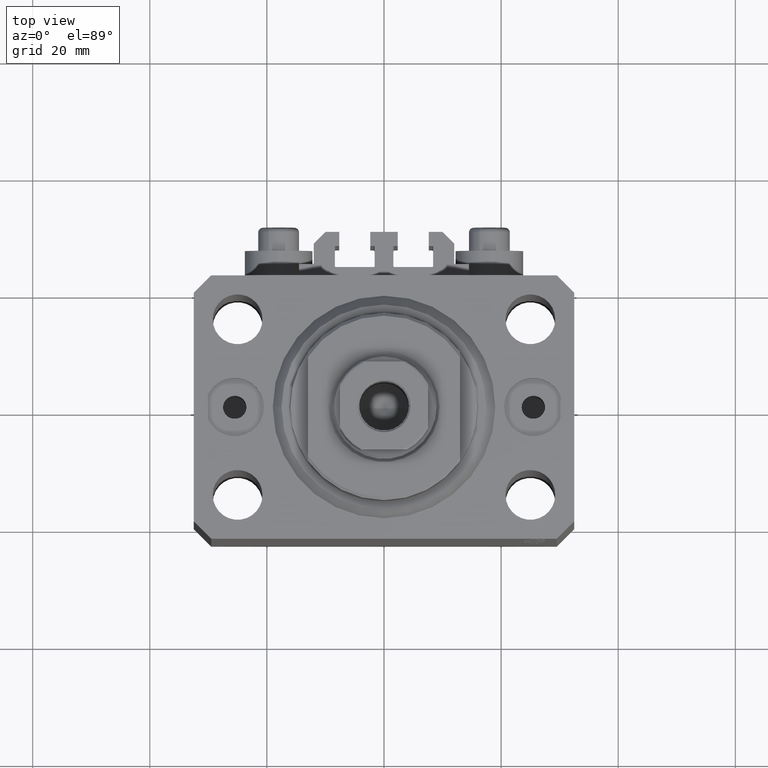
[diagram: clean part render]
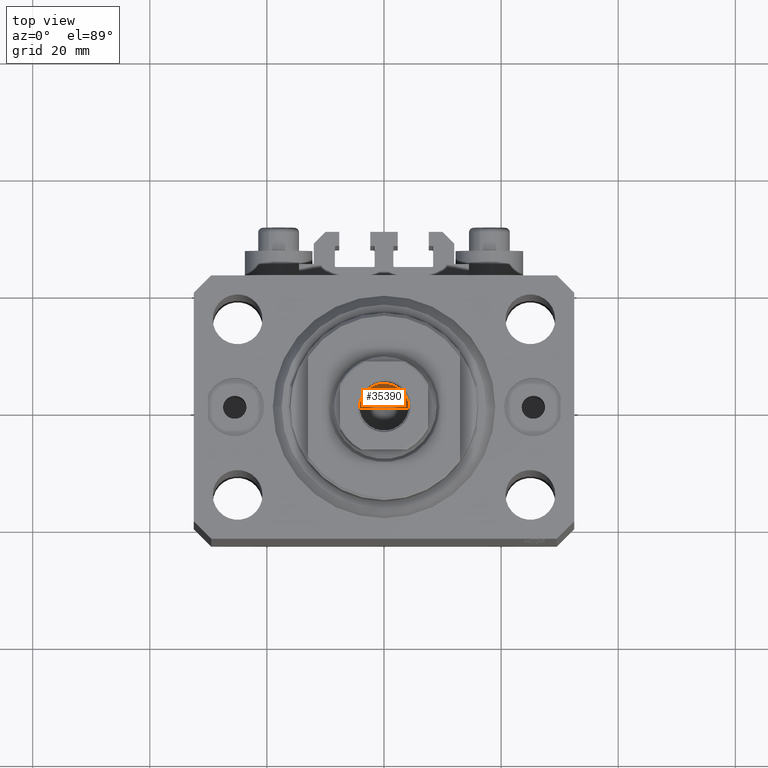
[diagram: same view with one face highlighted and labeled with its STEP entity id]
A machine part, top view. The second image highlights one B-rep face of the part: STEP entity #35390.
In plain terms, the highlighted conical surface has half-angle 59 deg.
Its self-contained STEP definition (entity closure, byte-faithful):
#937 = VERTEX_POINT ( 'NONE', #43314 ) ;
#1948 = LINE ( 'NONE', #42260, #16875 ) ;
#2684 = EDGE_CURVE ( 'NONE', #937, #23473, #24388, .T. ) ;
#3209 = AXIS2_PLACEMENT_3D ( 'NONE', #22324, #18749, #29724 ) ;
#6244 = CARTESIAN_POINT ( 'NONE',  ( 4.249999999999994671, 0.000000000000000000, 60.10000000000000853 ) ) ;
#9218 = CARTESIAN_POINT ( 'NONE',  ( 0.000000000000000000, 0.000000000000000000, 60.10000000000000853 ) ) ;
#12941 = DIRECTION ( 'NONE',  ( -0.8571673007021117785, 1.049727191138617956E-16, 0.5150380749100550437 ) ) ;
#14187 = EDGE_LOOP ( 'NONE', ( #35336, #19269, #29167 ) ) ;
#16875 = VECTOR ( 'NONE', #12941, 1000.000000000000000 ) ;
#17078 = DIRECTION ( 'NONE',  ( 1.000000000000000000, 0.000000000000000000, 0.000000000000000000 ) ) ;
#18749 = DIRECTION ( 'NONE',  ( -0.000000000000000000, -0.000000000000000000, 1.000000000000000000 ) ) ;
#19269 = ORIENTED_EDGE ( 'NONE', *, *, #2684, .T. ) ;
#22324 = CARTESIAN_POINT ( 'NONE',  ( 0.000000000000000000, 0.000000000000000000, 60.10000000000000853 ) ) ;
#23473 = VERTEX_POINT ( 'NONE', #45782 ) ;
#24388 = LINE ( 'NONE', #6244, #30492 ) ;
#27967 = DIRECTION ( 'NONE',  ( 0.8571673007021117785, 0.000000000000000000, 0.5150380749100550437 ) ) ;
#29167 = ORIENTED_EDGE ( 'NONE', *, *, #34072, .T. ) ;
#29724 = DIRECTION ( 'NONE',  ( 1.000000000000000000, 0.000000000000000000, 0.000000000000000000 ) ) ;
#29931 = AXIS2_PLACEMENT_3D ( 'NONE', #9218, #34285, #17078 ) ;
#30492 = VECTOR ( 'NONE', #27967, 1000.000000000000000 ) ;
#31386 = CIRCLE ( 'NONE', #3209, 4.249999999999994671 ) ;
#31393 = FACE_OUTER_BOUND ( 'NONE', #14187, .T. ) ;
#33462 = EDGE_CURVE ( 'NONE', #937, #36876, #1948, .T. ) ;
#34072 = EDGE_CURVE ( 'NONE', #23473, #36876, #31386, .T. ) ;
#34285 = DIRECTION ( 'NONE',  ( -0.000000000000000000, -0.000000000000000000, 1.000000000000000000 ) ) ;
#35336 = ORIENTED_EDGE ( 'NONE', *, *, #33462, .F. ) ;
#35390 = ADVANCED_FACE ( 'NONE', ( #31393 ), #43612, .F. ) ;
#36876 = VERTEX_POINT ( 'NONE', #38098 ) ;
#38098 = CARTESIAN_POINT ( 'NONE',  ( -4.249999999999994671, 5.204748896376244783E-16, 60.10000000000000853 ) ) ;
#42260 = CARTESIAN_POINT ( 'NONE',  ( -4.249999999999994671, 5.204748896376244783E-16, 60.10000000000000853 ) ) ;
#43314 = CARTESIAN_POINT ( 'NONE',  ( -6.748699724488696097E-15, 0.000000000000000000, 57.54634236913287992 ) ) ;
#43612 = CONICAL_SURFACE ( 'NONE', #29931, 4.249999999999994671, 1.029744258676653423 ) ;
#45782 = CARTESIAN_POINT ( 'NONE',  ( 4.249999999999994671, 0.000000000000000000, 60.10000000000000853 ) ) ;